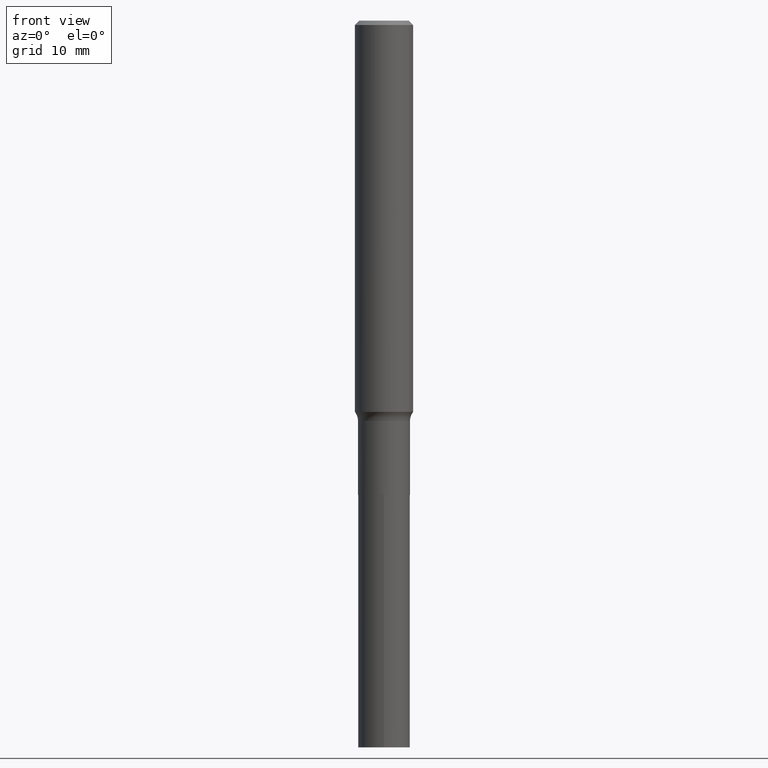
[diagram: clean part render]
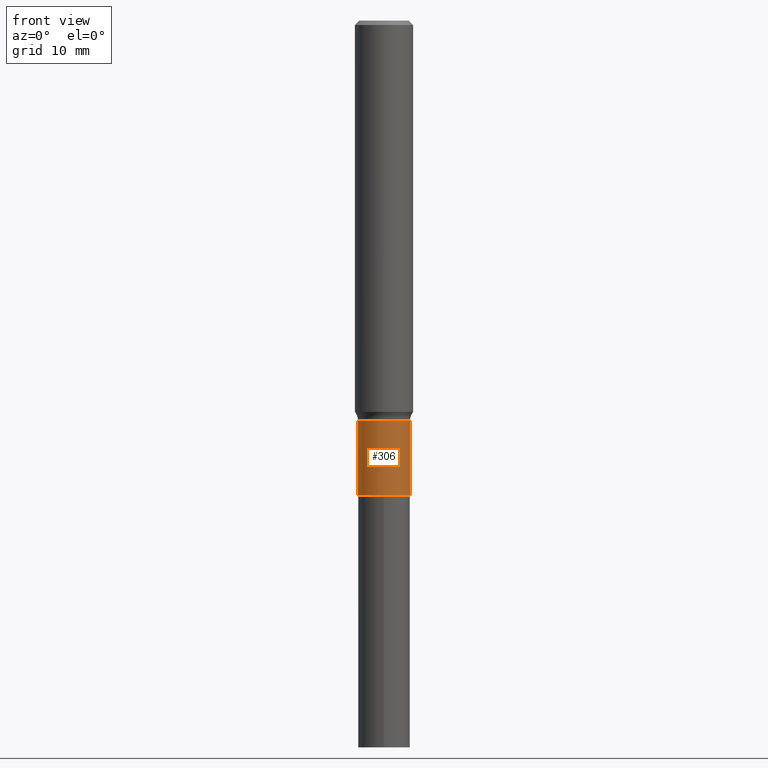
[diagram: same view with one face highlighted and labeled with its STEP entity id]
A machine part, front view. The second image highlights one B-rep face of the part: STEP entity #306.
In plain terms, the highlighted cylindrical surface (edge-blend (fillet) strip) has radius 3.5712 mm, axis along (-0, 0, 1).
Its self-contained STEP definition (entity closure, byte-faithful):
#7 = FACE_OUTER_BOUND ( 'NONE', #173, .T. ) ;
#8 = VERTEX_POINT ( 'NONE', #213 ) ;
#16 = AXIS2_PLACEMENT_3D ( 'NONE', #347, #131, #447 ) ;
#28 = VERTEX_POINT ( 'NONE', #421 ) ;
#29 = CARTESIAN_POINT ( 'NONE',  ( 0.1405999999999999750, -9.818045524826889086E-16, 6.855904546769083471E-30 ) ) ;
#44 = AXIS2_PLACEMENT_3D ( 'NONE', #376, #199, #237 ) ;
#64 = CARTESIAN_POINT ( 'NONE',  ( 0.1405999999999999472, -8.554129280165703542E-15, -2.168800000000000061 ) ) ;
#111 = DIRECTION ( 'NONE',  ( 1.000000000000000000, -6.982962677686268288E-15, 0.000000000000000000 ) ) ;
#117 = DIRECTION ( 'NONE',  ( -2.445468806185136597E-29, 3.491481338843145583E-15, 1.000000000000000000 ) ) ;
#131 = DIRECTION ( 'NONE',  ( -2.445468806185136597E-29, 3.491481338843145583E-15, 1.000000000000000000 ) ) ;
#146 = EDGE_CURVE ( 'NONE', #8, #446, #344, .T. ) ;
#173 = EDGE_LOOP ( 'NONE', ( #355, #418, #444, #279 ) ) ;
#199 = DIRECTION ( 'NONE',  ( -2.445468806185136597E-29, 3.491481338843145583E-15, 1.000000000000000000 ) ) ;
#205 = LINE ( 'NONE', #441, #310 ) ;
#213 = CARTESIAN_POINT ( 'NONE',  ( -0.1405999999999999472, -7.272819927441538434E-15, -2.168800000000000061 ) ) ;
#237 = DIRECTION ( 'NONE',  ( 1.000000000000000000, -6.982962677686265133E-15, 0.000000000000000000 ) ) ;
#249 = LINE ( 'NONE', #29, #426 ) ;
#279 = ORIENTED_EDGE ( 'NONE', *, *, #146, .F. ) ;
#300 = CYLINDRICAL_SURFACE ( 'NONE', #16, 0.1405999999999999750 ) ;
#306 = ADVANCED_FACE ( 'NONE', ( #7 ), #300, .T. ) ;
#310 = VECTOR ( 'NONE', #408, 39.37007874015748143 ) ;
#314 = EDGE_CURVE ( 'NONE', #388, #28, #352, .T. ) ;
#324 = CARTESIAN_POINT ( 'NONE',  ( -0.1406000000000000028, -7.272819927441538434E-15, -2.569500000000000117 ) ) ;
#340 = EDGE_CURVE ( 'NONE', #388, #8, #205, .T. ) ;
#344 = CIRCLE ( 'NONE', #432, 0.1405999999999999472 ) ;
#347 = CARTESIAN_POINT ( 'NONE',  ( 0.000000000000000000, 0.000000000000000000, 0.000000000000000000 ) ) ;
#352 = CIRCLE ( 'NONE', #44, 0.1406000000000000028 ) ;
#355 = ORIENTED_EDGE ( 'NONE', *, *, #340, .F. ) ;
#376 = CARTESIAN_POINT ( 'NONE',  ( 6.283632097492708387E-29, -8.971361300157462616E-15, -2.569500000000000117 ) ) ;
#388 = VERTEX_POINT ( 'NONE', #324 ) ;
#408 = DIRECTION ( 'NONE',  ( -2.445468806185136877E-29, 3.491481338843145188E-15, 1.000000000000000000 ) ) ;
#418 = ORIENTED_EDGE ( 'NONE', *, *, #314, .T. ) ;
#421 = CARTESIAN_POINT ( 'NONE',  ( 0.1406000000000000028, -9.953165852640150933E-15, -2.569500000000000117 ) ) ;
#426 = VECTOR ( 'NONE', #458, 39.37007874015748143 ) ;
#432 = AXIS2_PLACEMENT_3D ( 'NONE', #436, #117, #111 ) ;
#435 = EDGE_CURVE ( 'NONE', #28, #446, #249, .T. ) ;
#436 = CARTESIAN_POINT ( 'NONE',  ( 5.303732746854324050E-29, -7.572324727683015225E-15, -2.168800000000000061 ) ) ;
#441 = CARTESIAN_POINT ( 'NONE',  ( -0.1405999999999999750, 9.990230864787006837E-16, -6.916022736898396338E-30 ) ) ;
#444 = ORIENTED_EDGE ( 'NONE', *, *, #435, .T. ) ;
#446 = VERTEX_POINT ( 'NONE', #64 ) ;
#447 = DIRECTION ( 'NONE',  ( 1.000000000000000000, -6.982962677686266711E-15, 4.876176775795935232E-29 ) ) ;
#458 = DIRECTION ( 'NONE',  ( -2.445468806185136877E-29, 3.491481338843145188E-15, 1.000000000000000000 ) ) ;